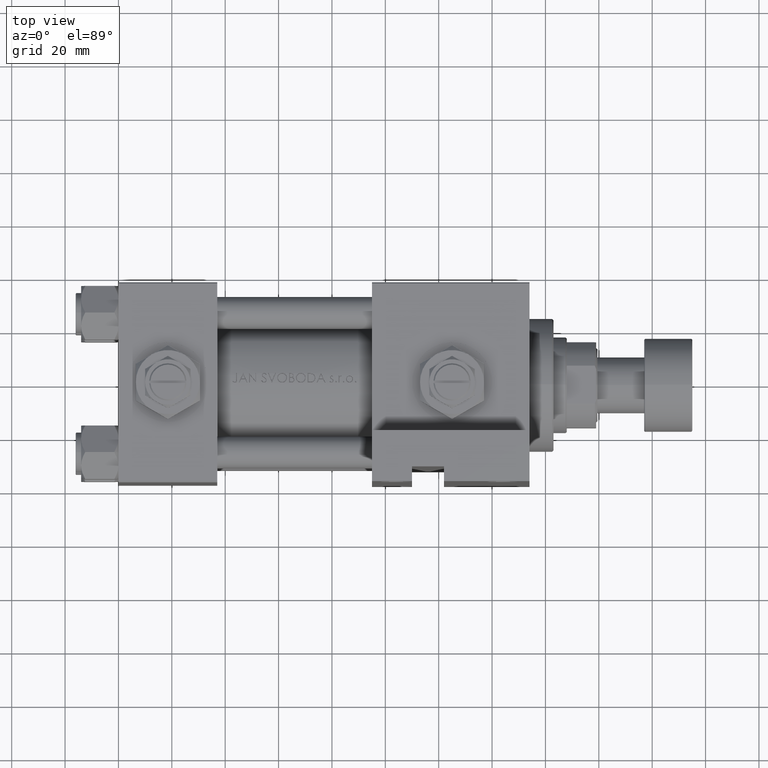
[diagram: clean part render]
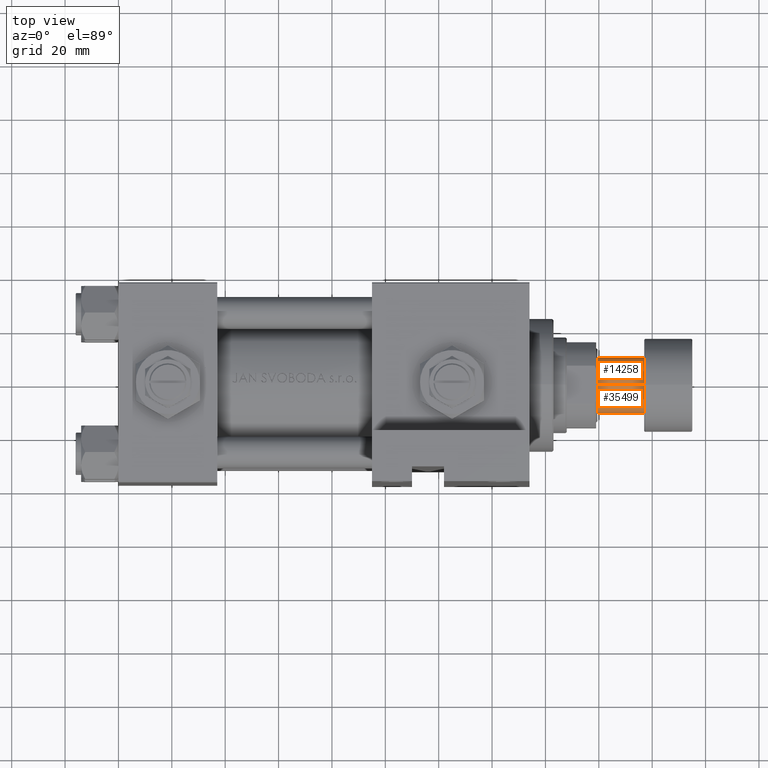
[diagram: same view with one multi-face feature highlighted, each face labeled with its STEP entity id]
A machine part, top view. The highlighted faces form ONE feature: a constant-radius fillet chain: 2 tangent blend faces with common blend radius 10.5 mm. The faces share edges in the B-rep.
Their STEP definitions:
[1] entity #35499 (Cylinder):
#331 = VECTOR ( 'NONE', #8888, 1000.000000000000000 ) ;
#864 = CARTESIAN_POINT ( 'NONE',  ( 0.000000000000000000, 0.000000000000000000, -35.50000000000000711 ) ) ;
#1726 = ORIENTED_EDGE ( 'NONE', *, *, #16678, .T. ) ;
#3948 = DIRECTION ( 'NONE',  ( -1.000000000000000000, 0.000000000000000000, 0.000000000000000000 ) ) ;
#5135 = CARTESIAN_POINT ( 'NONE',  ( 10.50000000000000000, 0.000000000000000000, -18.00000000000000000 ) ) ;
#7253 = EDGE_CURVE ( 'NONE', #11198, #33076, #27818, .T. ) ;
#7574 = AXIS2_PLACEMENT_3D ( 'NONE', #46286, #19149, #3948 ) ;
#8888 = DIRECTION ( 'NONE',  ( -0.000000000000000000, -0.000000000000000000, 1.000000000000000000 ) ) ;
#9357 = FACE_OUTER_BOUND ( 'NONE', #35286, .T. ) ;
#11198 = VERTEX_POINT ( 'NONE', #27460 ) ;
#11552 = EDGE_CURVE ( 'NONE', #11198, #17094, #28147, .T. ) ;
#12603 = CARTESIAN_POINT ( 'NONE',  ( -10.50000000000000000, 1.285879139104720831E-15, -18.00000000000000000 ) ) ;
#13918 = VECTOR ( 'NONE', #40017, 1000.000000000000000 ) ;
#16678 = EDGE_CURVE ( 'NONE', #17094, #22545, #31038, .T. ) ;
#17094 = VERTEX_POINT ( 'NONE', #5135 ) ;
#18078 = AXIS2_PLACEMENT_3D ( 'NONE', #864, #42470, #46516 ) ;
#19149 = DIRECTION ( 'NONE',  ( 0.000000000000000000, 0.000000000000000000, -1.000000000000000000 ) ) ;
#20233 = EDGE_CURVE ( 'NONE', #33076, #22545, #35725, .T. ) ;
#21226 = ORIENTED_EDGE ( 'NONE', *, *, #20233, .F. ) ;
#22545 = VERTEX_POINT ( 'NONE', #12603 ) ;
#23539 = CARTESIAN_POINT ( 'NONE',  ( -10.50000000000000000, 1.285879139104720831E-15, -35.50000000000000711 ) ) ;
#27460 = CARTESIAN_POINT ( 'NONE',  ( 10.50000000000000000, 0.000000000000000000, -35.50000000000000711 ) ) ;
#27818 = CIRCLE ( 'NONE', #18078, 10.50000000000000000 ) ;
#27851 = CYLINDRICAL_SURFACE ( 'NONE', #45918, 10.50000000000000000 ) ;
#28106 = CARTESIAN_POINT ( 'NONE',  ( 0.000000000000000000, 0.000000000000000000, -35.50000000000000711 ) ) ;
#28147 = LINE ( 'NONE', #43611, #331 ) ;
#30980 = CARTESIAN_POINT ( 'NONE',  ( -10.50000000000000000, 1.285879139104720831E-15, -35.50000000000000711 ) ) ;
#31038 = CIRCLE ( 'NONE', #7574, 10.50000000000000000 ) ;
#33076 = VERTEX_POINT ( 'NONE', #30980 ) ;
#35286 = EDGE_LOOP ( 'NONE', ( #21226, #37741, #48885, #1726 ) ) ;
#35499 = ADVANCED_FACE ( 'NONE', ( #9357 ), #27851, .T. ) ;
#35725 = LINE ( 'NONE', #23539, #13918 ) ;
#37741 = ORIENTED_EDGE ( 'NONE', *, *, #7253, .F. ) ;
#40017 = DIRECTION ( 'NONE',  ( -0.000000000000000000, -0.000000000000000000, 1.000000000000000000 ) ) ;
#42470 = DIRECTION ( 'NONE',  ( 0.000000000000000000, 0.000000000000000000, -1.000000000000000000 ) ) ;
#43323 = DIRECTION ( 'NONE',  ( -0.000000000000000000, -0.000000000000000000, 1.000000000000000000 ) ) ;
#43573 = DIRECTION ( 'NONE',  ( 1.000000000000000000, 0.000000000000000000, 0.000000000000000000 ) ) ;
#43611 = CARTESIAN_POINT ( 'NONE',  ( 10.50000000000000000, 0.000000000000000000, -35.50000000000000711 ) ) ;
#45918 = AXIS2_PLACEMENT_3D ( 'NONE', #28106, #43323, #43573 ) ;
#46286 = CARTESIAN_POINT ( 'NONE',  ( 0.000000000000000000, 0.000000000000000000, -18.00000000000000000 ) ) ;
#46516 = DIRECTION ( 'NONE',  ( -1.000000000000000000, 0.000000000000000000, 0.000000000000000000 ) ) ;
#48885 = ORIENTED_EDGE ( 'NONE', *, *, #11552, .T. ) ;
[2] entity #14258 (Cylinder):
#331 = VECTOR ( 'NONE', #8888, 1000.000000000000000 ) ;
#1343 = CIRCLE ( 'NONE', #5353, 10.50000000000000000 ) ;
#5135 = CARTESIAN_POINT ( 'NONE',  ( 10.50000000000000000, 0.000000000000000000, -18.00000000000000000 ) ) ;
#5353 = AXIS2_PLACEMENT_3D ( 'NONE', #18039, #37339, #6904 ) ;
#6102 = ORIENTED_EDGE ( 'NONE', *, *, #30073, .T. ) ;
#6904 = DIRECTION ( 'NONE',  ( -1.000000000000000000, 0.000000000000000000, 0.000000000000000000 ) ) ;
#7210 = CARTESIAN_POINT ( 'NONE',  ( 0.000000000000000000, 0.000000000000000000, -35.50000000000000711 ) ) ;
#8682 = CARTESIAN_POINT ( 'NONE',  ( 0.000000000000000000, 0.000000000000000000, -35.50000000000000711 ) ) ;
#8888 = DIRECTION ( 'NONE',  ( -0.000000000000000000, -0.000000000000000000, 1.000000000000000000 ) ) ;
#10751 = DIRECTION ( 'NONE',  ( -1.000000000000000000, 0.000000000000000000, 0.000000000000000000 ) ) ;
#11198 = VERTEX_POINT ( 'NONE', #27460 ) ;
#11552 = EDGE_CURVE ( 'NONE', #11198, #17094, #28147, .T. ) ;
#12603 = CARTESIAN_POINT ( 'NONE',  ( -10.50000000000000000, 1.285879139104720831E-15, -18.00000000000000000 ) ) ;
#13918 = VECTOR ( 'NONE', #40017, 1000.000000000000000 ) ;
#14258 = ADVANCED_FACE ( 'NONE', ( #38856 ), #15504, .T. ) ;
#15504 = CYLINDRICAL_SURFACE ( 'NONE', #45374, 10.50000000000000000 ) ;
#17094 = VERTEX_POINT ( 'NONE', #5135 ) ;
#18039 = CARTESIAN_POINT ( 'NONE',  ( 0.000000000000000000, 0.000000000000000000, -18.00000000000000000 ) ) ;
#18042 = CIRCLE ( 'NONE', #29278, 10.50000000000000000 ) ;
#19338 = EDGE_CURVE ( 'NONE', #33076, #11198, #18042, .T. ) ;
#20233 = EDGE_CURVE ( 'NONE', #33076, #22545, #35725, .T. ) ;
#22545 = VERTEX_POINT ( 'NONE', #12603 ) ;
#23377 = DIRECTION ( 'NONE',  ( -0.000000000000000000, -0.000000000000000000, 1.000000000000000000 ) ) ;
#23539 = CARTESIAN_POINT ( 'NONE',  ( -10.50000000000000000, 1.285879139104720831E-15, -35.50000000000000711 ) ) ;
#26877 = ORIENTED_EDGE ( 'NONE', *, *, #11552, .F. ) ;
#27460 = CARTESIAN_POINT ( 'NONE',  ( 10.50000000000000000, 0.000000000000000000, -35.50000000000000711 ) ) ;
#28147 = LINE ( 'NONE', #43611, #331 ) ;
#29278 = AXIS2_PLACEMENT_3D ( 'NONE', #7210, #50056, #10751 ) ;
#30073 = EDGE_CURVE ( 'NONE', #22545, #17094, #1343, .T. ) ;
#30743 = DIRECTION ( 'NONE',  ( 1.000000000000000000, 0.000000000000000000, 0.000000000000000000 ) ) ;
#30980 = CARTESIAN_POINT ( 'NONE',  ( -10.50000000000000000, 1.285879139104720831E-15, -35.50000000000000711 ) ) ;
#33076 = VERTEX_POINT ( 'NONE', #30980 ) ;
#35725 = LINE ( 'NONE', #23539, #13918 ) ;
#37339 = DIRECTION ( 'NONE',  ( 0.000000000000000000, 0.000000000000000000, -1.000000000000000000 ) ) ;
#38856 = FACE_OUTER_BOUND ( 'NONE', #49002, .T. ) ;
#39333 = ORIENTED_EDGE ( 'NONE', *, *, #20233, .T. ) ;
#40017 = DIRECTION ( 'NONE',  ( -0.000000000000000000, -0.000000000000000000, 1.000000000000000000 ) ) ;
#41694 = ORIENTED_EDGE ( 'NONE', *, *, #19338, .F. ) ;
#43611 = CARTESIAN_POINT ( 'NONE',  ( 10.50000000000000000, 0.000000000000000000, -35.50000000000000711 ) ) ;
#45374 = AXIS2_PLACEMENT_3D ( 'NONE', #8682, #23377, #30743 ) ;
#49002 = EDGE_LOOP ( 'NONE', ( #41694, #39333, #6102, #26877 ) ) ;
#50056 = DIRECTION ( 'NONE',  ( 0.000000000000000000, 0.000000000000000000, -1.000000000000000000 ) ) ;